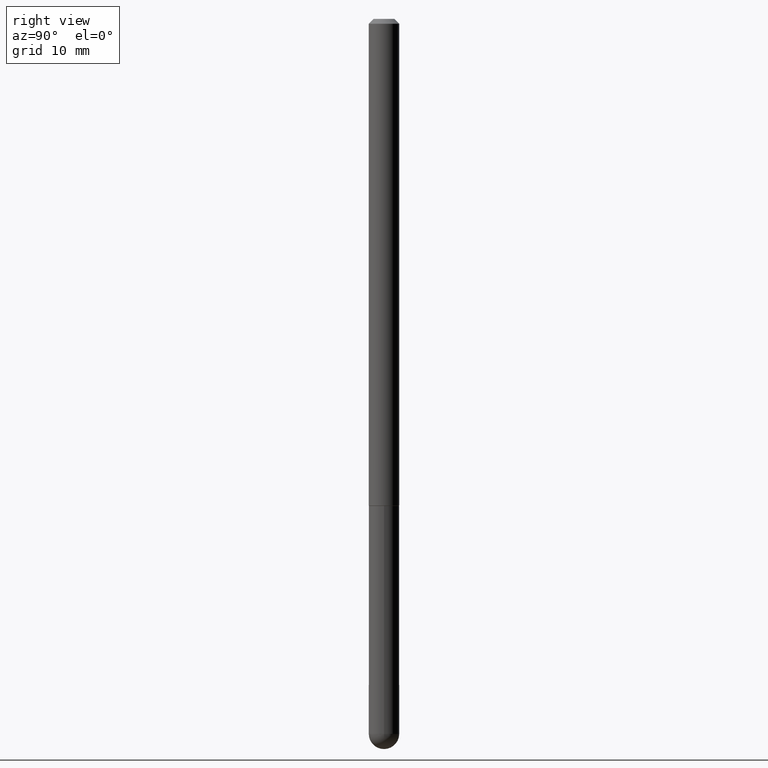
[diagram: clean part render]
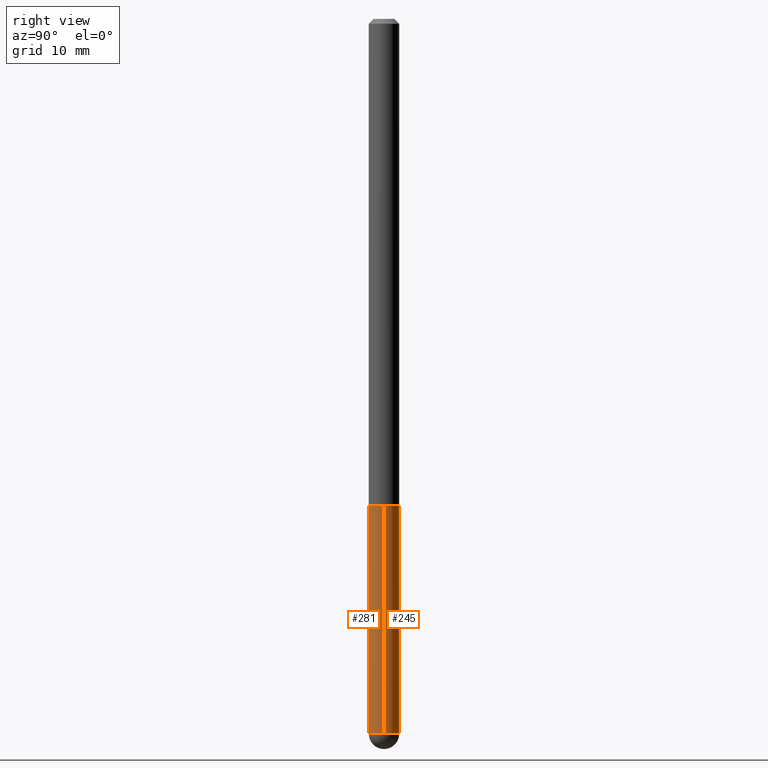
[diagram: same view with one multi-face feature highlighted, each face labeled with its STEP entity id]
A machine part, right view. The highlighted faces form ONE feature: a constant-radius fillet chain: 2 tangent blend faces with common blend radius 1.5875 mm. The faces share edges in the B-rep.
Their STEP definitions:
[1] entity #281 (Cylinder):
#1 = VERTEX_POINT ( 'NONE', #290 ) ;
#4 = AXIS2_PLACEMENT_3D ( 'NONE', #174, #274, #367 ) ;
#14 = VECTOR ( 'NONE', #99, 39.37007874015748143 ) ;
#29 = CARTESIAN_POINT ( 'NONE',  ( -0.06250000000000001388, -8.175505345418953226E-15, -2.000000000000000444 ) ) ;
#41 = LINE ( 'NONE', #164, #14 ) ;
#49 = AXIS2_PLACEMENT_3D ( 'NONE', #306, #176, #409 ) ;
#52 = CARTESIAN_POINT ( 'NONE',  ( 0.06249999999999995143, -9.056029722624407511E-15, -2.937500000000000000 ) ) ;
#73 = EDGE_CURVE ( 'NONE', #248, #391, #41, .T. ) ;
#89 = LINE ( 'NONE', #282, #327 ) ;
#98 = ORIENTED_EDGE ( 'NONE', *, *, #106, .F. ) ;
#99 = DIRECTION ( 'NONE',  ( -2.445468806185136877E-29, 3.491481338843145188E-15, 1.000000000000000000 ) ) ;
#106 = EDGE_CURVE ( 'NONE', #391, #355, #344, .T. ) ;
#110 = AXIS2_PLACEMENT_3D ( 'NONE', #265, #358, #393 ) ;
#154 = ORIENTED_EDGE ( 'NONE', *, *, #73, .F. ) ;
#164 = CARTESIAN_POINT ( 'NONE',  ( -0.06249999999999997918, 4.440892098500624683E-16, -3.074334431409315413E-30 ) ) ;
#167 = EDGE_CURVE ( 'NONE', #248, #1, #196, .T. ) ;
#168 = CARTESIAN_POINT ( 'NONE',  ( 0.000000000000000000, 0.000000000000000000, 0.000000000000000000 ) ) ;
#170 = AXIS2_PLACEMENT_3D ( 'NONE', #168, #302, #336 ) ;
#174 = CARTESIAN_POINT ( 'NONE',  ( 7.183564618168837632E-29, -1.025622643285173973E-14, -2.937500000000000000 ) ) ;
#176 = DIRECTION ( 'NONE',  ( -2.445468806185136597E-29, 3.491481338843145583E-15, 1.000000000000000000 ) ) ;
#183 = ORIENTED_EDGE ( 'NONE', *, *, #396, .T. ) ;
#196 = CIRCLE ( 'NONE', #4, 0.06249999999999995143 ) ;
#198 = ORIENTED_EDGE ( 'NONE', *, *, #321, .T. ) ;
#209 = FACE_OUTER_BOUND ( 'NONE', #412, .T. ) ;
#230 = VERTEX_POINT ( 'NONE', #52 ) ;
#247 = DIRECTION ( 'NONE',  ( -2.445468806185136877E-29, 3.491481338843145188E-15, 1.000000000000000000 ) ) ;
#248 = VERTEX_POINT ( 'NONE', #373 ) ;
#258 = ORIENTED_EDGE ( 'NONE', *, *, #167, .T. ) ;
#265 = CARTESIAN_POINT ( 'NONE',  ( 4.890937612370273754E-29, -6.982962677686291954E-15, -2.000000000000000444 ) ) ;
#274 = DIRECTION ( 'NONE',  ( -2.445468806185136597E-29, 3.491481338843145583E-15, 1.000000000000000000 ) ) ;
#281 = ADVANCED_FACE ( 'NONE', ( #209 ), #308, .T. ) ;
#282 = CARTESIAN_POINT ( 'NONE',  ( 0.06249999999999997918, -4.364351673553915708E-16, 3.047610484872459170E-30 ) ) ;
#290 = CARTESIAN_POINT ( 'NONE',  ( -4.440892098499933443E-16, -0.06250000000001063039, -2.937500000000000000 ) ) ;
#302 = DIRECTION ( 'NONE',  ( -2.445468806185136597E-29, 3.491481338843145583E-15, 1.000000000000000000 ) ) ;
#306 = CARTESIAN_POINT ( 'NONE',  ( 7.183564618168837632E-29, -1.025622643285173973E-14, -2.937500000000000000 ) ) ;
#308 = CYLINDRICAL_SURFACE ( 'NONE', #170, 0.06249999999999997918 ) ;
#318 = CIRCLE ( 'NONE', #49, 0.06249999999999995143 ) ;
#321 = EDGE_CURVE ( 'NONE', #1, #230, #318, .T. ) ;
#327 = VECTOR ( 'NONE', #247, 39.37007874015748143 ) ;
#336 = DIRECTION ( 'NONE',  ( 1.000000000000000000, -6.982962677686267499E-15, 4.876176775795936353E-29 ) ) ;
#344 = CIRCLE ( 'NONE', #110, 0.06250000000000001388 ) ;
#350 = CARTESIAN_POINT ( 'NONE',  ( 0.06250000000000001388, -7.419397845041683624E-15, -2.000000000000000444 ) ) ;
#355 = VERTEX_POINT ( 'NONE', #350 ) ;
#358 = DIRECTION ( 'NONE',  ( -2.445468806185136597E-29, 3.491481338843145583E-15, 1.000000000000000000 ) ) ;
#367 = DIRECTION ( 'NONE',  ( 1.000000000000000000, -6.982962677686268288E-15, 0.000000000000000000 ) ) ;
#373 = CARTESIAN_POINT ( 'NONE',  ( -0.06249999999999995143, -8.175505345418953226E-15, -2.937500000000000000 ) ) ;
#391 = VERTEX_POINT ( 'NONE', #29 ) ;
#393 = DIRECTION ( 'NONE',  ( 1.000000000000000000, -6.982962677686261189E-15, 0.000000000000000000 ) ) ;
#396 = EDGE_CURVE ( 'NONE', #230, #355, #89, .T. ) ;
#409 = DIRECTION ( 'NONE',  ( 1.000000000000000000, -6.982962677686268288E-15, 0.000000000000000000 ) ) ;
#412 = EDGE_LOOP ( 'NONE', ( #154, #258, #198, #183, #98 ) ) ;
[2] entity #245 (Cylinder):
#14 = VECTOR ( 'NONE', #99, 39.37007874015748143 ) ;
#16 = CYLINDRICAL_SURFACE ( 'NONE', #400, 0.06249999999999997918 ) ;
#29 = CARTESIAN_POINT ( 'NONE',  ( -0.06250000000000001388, -8.175505345418953226E-15, -2.000000000000000444 ) ) ;
#33 = CIRCLE ( 'NONE', #276, 0.06250000000000001388 ) ;
#41 = LINE ( 'NONE', #164, #14 ) ;
#45 = DIRECTION ( 'NONE',  ( 1.000000000000000000, -6.982962677686267499E-15, 4.876176775795936353E-29 ) ) ;
#52 = CARTESIAN_POINT ( 'NONE',  ( 0.06249999999999995143, -9.056029722624407511E-15, -2.937500000000000000 ) ) ;
#73 = EDGE_CURVE ( 'NONE', #248, #391, #41, .T. ) ;
#76 = CARTESIAN_POINT ( 'NONE',  ( 4.364351673554627655E-16, 0.06249999999998964717, -2.937500000000000000 ) ) ;
#77 = AXIS2_PLACEMENT_3D ( 'NONE', #278, #246, #249 ) ;
#83 = EDGE_CURVE ( 'NONE', #172, #248, #242, .T. ) ;
#89 = LINE ( 'NONE', #282, #327 ) ;
#93 = ORIENTED_EDGE ( 'NONE', *, *, #396, .F. ) ;
#99 = DIRECTION ( 'NONE',  ( -2.445468806185136877E-29, 3.491481338843145188E-15, 1.000000000000000000 ) ) ;
#105 = CARTESIAN_POINT ( 'NONE',  ( 4.890937612370273754E-29, -6.982962677686291954E-15, -2.000000000000000444 ) ) ;
#114 = FACE_OUTER_BOUND ( 'NONE', #410, .T. ) ;
#119 = ORIENTED_EDGE ( 'NONE', *, *, #83, .T. ) ;
#120 = EDGE_CURVE ( 'NONE', #355, #391, #33, .T. ) ;
#137 = DIRECTION ( 'NONE',  ( 1.000000000000000000, -6.982962677686268288E-15, 0.000000000000000000 ) ) ;
#143 = CARTESIAN_POINT ( 'NONE',  ( 0.000000000000000000, 0.000000000000000000, 0.000000000000000000 ) ) ;
#162 = DIRECTION ( 'NONE',  ( -2.445468806185136597E-29, 3.491481338843145583E-15, 1.000000000000000000 ) ) ;
#164 = CARTESIAN_POINT ( 'NONE',  ( -0.06249999999999997918, 4.440892098500624683E-16, -3.074334431409315413E-30 ) ) ;
#172 = VERTEX_POINT ( 'NONE', #76 ) ;
#215 = ORIENTED_EDGE ( 'NONE', *, *, #120, .F. ) ;
#220 = ORIENTED_EDGE ( 'NONE', *, *, #73, .T. ) ;
#225 = DIRECTION ( 'NONE',  ( -2.445468806185136597E-29, 3.491481338843145583E-15, 1.000000000000000000 ) ) ;
#230 = VERTEX_POINT ( 'NONE', #52 ) ;
#242 = CIRCLE ( 'NONE', #300, 0.06249999999999995143 ) ;
#244 = DIRECTION ( 'NONE',  ( -2.445468806185136597E-29, 3.491481338843145583E-15, 1.000000000000000000 ) ) ;
#245 = ADVANCED_FACE ( 'NONE', ( #114 ), #16, .T. ) ;
#246 = DIRECTION ( 'NONE',  ( -2.445468806185136597E-29, 3.491481338843145583E-15, 1.000000000000000000 ) ) ;
#247 = DIRECTION ( 'NONE',  ( -2.445468806185136877E-29, 3.491481338843145188E-15, 1.000000000000000000 ) ) ;
#248 = VERTEX_POINT ( 'NONE', #373 ) ;
#249 = DIRECTION ( 'NONE',  ( 1.000000000000000000, -6.982962677686268288E-15, 0.000000000000000000 ) ) ;
#276 = AXIS2_PLACEMENT_3D ( 'NONE', #105, #162, #395 ) ;
#278 = CARTESIAN_POINT ( 'NONE',  ( 7.183564618168837632E-29, -1.025622643285173973E-14, -2.937500000000000000 ) ) ;
#280 = ORIENTED_EDGE ( 'NONE', *, *, #383, .T. ) ;
#282 = CARTESIAN_POINT ( 'NONE',  ( 0.06249999999999997918, -4.364351673553915708E-16, 3.047610484872459170E-30 ) ) ;
#284 = CIRCLE ( 'NONE', #77, 0.06249999999999995143 ) ;
#300 = AXIS2_PLACEMENT_3D ( 'NONE', #363, #225, #137 ) ;
#327 = VECTOR ( 'NONE', #247, 39.37007874015748143 ) ;
#350 = CARTESIAN_POINT ( 'NONE',  ( 0.06250000000000001388, -7.419397845041683624E-15, -2.000000000000000444 ) ) ;
#355 = VERTEX_POINT ( 'NONE', #350 ) ;
#363 = CARTESIAN_POINT ( 'NONE',  ( 7.183564618168837632E-29, -1.025622643285173973E-14, -2.937500000000000000 ) ) ;
#373 = CARTESIAN_POINT ( 'NONE',  ( -0.06249999999999995143, -8.175505345418953226E-15, -2.937500000000000000 ) ) ;
#383 = EDGE_CURVE ( 'NONE', #230, #172, #284, .T. ) ;
#391 = VERTEX_POINT ( 'NONE', #29 ) ;
#395 = DIRECTION ( 'NONE',  ( 1.000000000000000000, -6.982962677686261189E-15, 0.000000000000000000 ) ) ;
#396 = EDGE_CURVE ( 'NONE', #230, #355, #89, .T. ) ;
#400 = AXIS2_PLACEMENT_3D ( 'NONE', #143, #244, #45 ) ;
#410 = EDGE_LOOP ( 'NONE', ( #119, #220, #215, #93, #280 ) ) ;